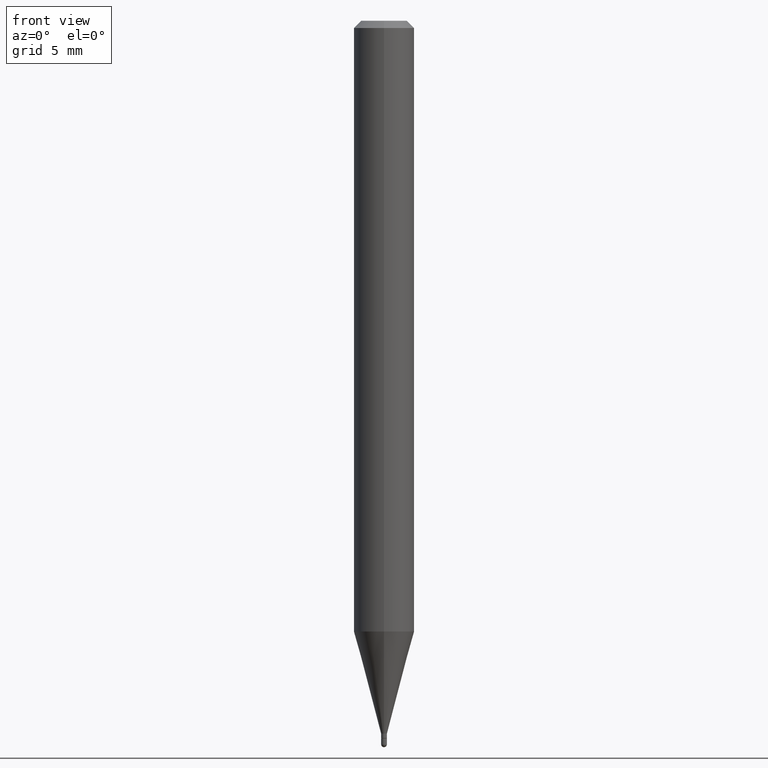
[diagram: clean part render]
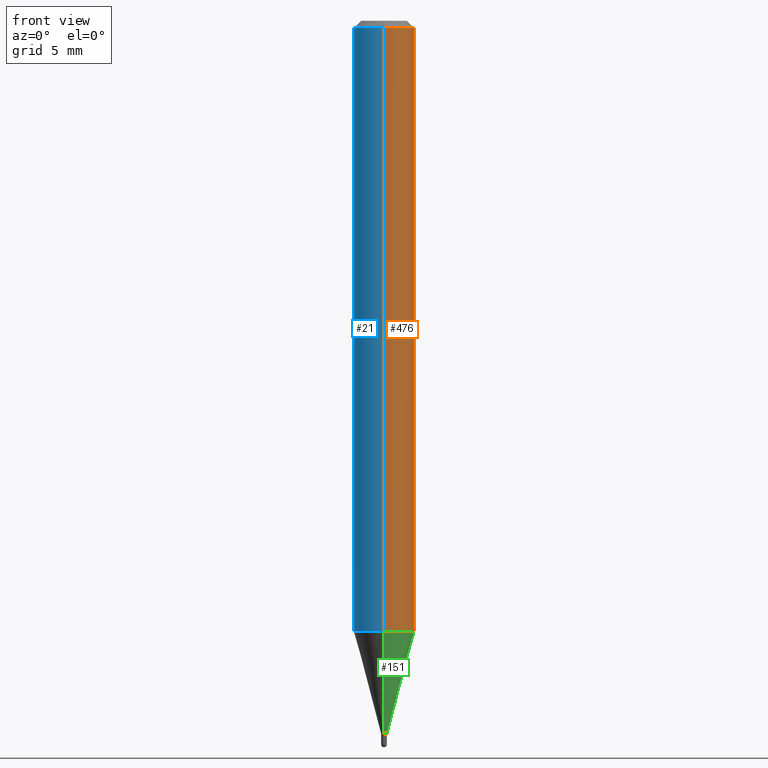
[diagram: same view with three faces highlighted in distinct colors, each labeled with its STEP entity id]
A machine part, front view with three faces highlighted in distinct colors.
Their STEP definitions:

[orange] entity #476 — the highlighted cylindrical surface (edge-blend (fillet) strip) has radius 1.5875 mm, axis along (-0, 0, 1).
#31 = DIRECTION ( 'NONE',  ( -2.445483068383558096E-29, 3.491460914563251865E-15, 1.000000000000000000 ) ) ;
#66 = CARTESIAN_POINT ( 'NONE',  ( -4.364351673553912750E-16, -0.06250000000000005551, -0.01499999999999979128 ) ) ;
#94 = AXIS2_PLACEMENT_3D ( 'NONE', #421, #186, #461 ) ;
#96 = CARTESIAN_POINT ( 'NONE',  ( 3.084094387756085363E-29, -4.403217978029919440E-15, -1.261139129372358836 ) ) ;
#105 = VERTEX_POINT ( 'NONE', #486 ) ;
#109 = CARTESIAN_POINT ( 'NONE',  ( 4.440892098500935790E-16, 0.06249999999999995143, -0.01500000000000022669 ) ) ;
#110 = ORIENTED_EDGE ( 'NONE', *, *, #156, .F. ) ;
#115 = CARTESIAN_POINT ( 'NONE',  ( 4.440892098500625669E-16, 0.06250000000000000000, -2.182163071602032416E-16 ) ) ;
#120 = CIRCLE ( 'NONE', #94, 0.06250000000000000000 ) ;
#123 = AXIS2_PLACEMENT_3D ( 'NONE', #96, #127, #280 ) ;
#127 = DIRECTION ( 'NONE',  ( -2.445483068383558096E-29, 3.491460914563251865E-15, 1.000000000000000000 ) ) ;
#146 = VERTEX_POINT ( 'NONE', #66 ) ;
#153 = CIRCLE ( 'NONE', #123, 0.06250000000000000000 ) ;
#156 = EDGE_CURVE ( 'NONE', #146, #263, #120, .T. ) ;
#171 = DIRECTION ( 'NONE',  ( -6.982962677686265922E-15, -1.000000000000000000, 3.491460914563251865E-15 ) ) ;
#186 = DIRECTION ( 'NONE',  ( -2.445483068383558096E-29, 3.491460914563251865E-15, 1.000000000000000000 ) ) ;
#197 = ORIENTED_EDGE ( 'NONE', *, *, #382, .T. ) ;
#204 = CYLINDRICAL_SURFACE ( 'NONE', #304, 0.06250000000000000000 ) ;
#224 = CARTESIAN_POINT ( 'NONE',  ( -4.364351673553916201E-16, -0.06250000000000000000, 2.182163071602032416E-16 ) ) ;
#232 = VECTOR ( 'NONE', #261, 39.37007874015748143 ) ;
#248 = ORIENTED_EDGE ( 'NONE', *, *, #507, .T. ) ;
#261 = DIRECTION ( 'NONE',  ( -2.445483068383558096E-29, 3.491460914563251865E-15, 1.000000000000000000 ) ) ;
#263 = VERTEX_POINT ( 'NONE', #109 ) ;
#270 = EDGE_CURVE ( 'NONE', #429, #146, #501, .T. ) ;
#280 = DIRECTION ( 'NONE',  ( -6.982962677686265922E-15, -1.000000000000000000, 4.370956789862821150E-15 ) ) ;
#281 = VECTOR ( 'NONE', #31, 39.37007874015748143 ) ;
#283 = FACE_OUTER_BOUND ( 'NONE', #383, .T. ) ;
#304 = AXIS2_PLACEMENT_3D ( 'NONE', #444, #313, #171 ) ;
#313 = DIRECTION ( 'NONE',  ( -2.445483068383558096E-29, 3.491460914563251865E-15, 1.000000000000000000 ) ) ;
#341 = LINE ( 'NONE', #115, #232 ) ;
#382 = EDGE_CURVE ( 'NONE', #105, #263, #341, .T. ) ;
#383 = EDGE_LOOP ( 'NONE', ( #248, #197, #110, #468 ) ) ;
#411 = CARTESIAN_POINT ( 'NONE',  ( -4.364351673553608052E-16, -0.06250000000000439926, -1.261139129372358614 ) ) ;
#421 = CARTESIAN_POINT ( 'NONE',  ( 3.668224602575339527E-31, -5.237191371844881323E-17, -0.01500000000000000812 ) ) ;
#429 = VERTEX_POINT ( 'NONE', #411 ) ;
#444 = CARTESIAN_POINT ( 'NONE',  ( 0.000000000000000000, 0.000000000000000000, 0.000000000000000000 ) ) ;
#461 = DIRECTION ( 'NONE',  ( -6.982962677686265922E-15, -1.000000000000000000, 3.483106191921935554E-15 ) ) ;
#468 = ORIENTED_EDGE ( 'NONE', *, *, #270, .F. ) ;
#476 = ADVANCED_FACE ( 'NONE', ( #283 ), #204, .T. ) ;
#486 = CARTESIAN_POINT ( 'NONE',  ( 4.440892098500932831E-16, 0.06249999999999558686, -1.261139129372359058 ) ) ;
#501 = LINE ( 'NONE', #224, #281 ) ;
#507 = EDGE_CURVE ( 'NONE', #429, #105, #153, .T. ) ;

[blue] entity #21 — the highlighted cylindrical surface (edge-blend (fillet) strip) has radius 1.5875 mm, axis along (-0, 0, 1).
#3 = ORIENTED_EDGE ( 'NONE', *, *, #464, .T. ) ;
#21 = ADVANCED_FACE ( 'NONE', ( #460 ), #458, .T. ) ;
#31 = DIRECTION ( 'NONE',  ( -2.445483068383558096E-29, 3.491460914563251865E-15, 1.000000000000000000 ) ) ;
#55 = DIRECTION ( 'NONE',  ( -6.982962677686265922E-15, -1.000000000000000000, 3.491460914563251865E-15 ) ) ;
#57 = AXIS2_PLACEMENT_3D ( 'NONE', #177, #148, #55 ) ;
#66 = CARTESIAN_POINT ( 'NONE',  ( -4.364351673553912750E-16, -0.06250000000000005551, -0.01499999999999979128 ) ) ;
#75 = EDGE_CURVE ( 'NONE', #263, #146, #192, .T. ) ;
#81 = EDGE_LOOP ( 'NONE', ( #198, #3, #499, #330 ) ) ;
#95 = AXIS2_PLACEMENT_3D ( 'NONE', #170, #325, #390 ) ;
#105 = VERTEX_POINT ( 'NONE', #486 ) ;
#109 = CARTESIAN_POINT ( 'NONE',  ( 4.440892098500935790E-16, 0.06249999999999995143, -0.01500000000000022669 ) ) ;
#115 = CARTESIAN_POINT ( 'NONE',  ( 4.440892098500625669E-16, 0.06250000000000000000, -2.182163071602032416E-16 ) ) ;
#146 = VERTEX_POINT ( 'NONE', #66 ) ;
#148 = DIRECTION ( 'NONE',  ( -2.445483068383558096E-29, 3.491460914563251865E-15, 1.000000000000000000 ) ) ;
#170 = CARTESIAN_POINT ( 'NONE',  ( 3.084094387756085363E-29, -4.403217978029919440E-15, -1.261139129372358836 ) ) ;
#177 = CARTESIAN_POINT ( 'NONE',  ( 0.000000000000000000, 0.000000000000000000, 0.000000000000000000 ) ) ;
#184 = CIRCLE ( 'NONE', #95, 0.06250000000000000000 ) ;
#192 = CIRCLE ( 'NONE', #448, 0.06250000000000000000 ) ;
#198 = ORIENTED_EDGE ( 'NONE', *, *, #382, .F. ) ;
#213 = CARTESIAN_POINT ( 'NONE',  ( 3.668224602575339527E-31, -5.237191371844881323E-17, -0.01500000000000000812 ) ) ;
#220 = DIRECTION ( 'NONE',  ( -6.982962677686265922E-15, -1.000000000000000000, 3.483106191921935554E-15 ) ) ;
#224 = CARTESIAN_POINT ( 'NONE',  ( -4.364351673553916201E-16, -0.06250000000000000000, 2.182163071602032416E-16 ) ) ;
#232 = VECTOR ( 'NONE', #261, 39.37007874015748143 ) ;
#261 = DIRECTION ( 'NONE',  ( -2.445483068383558096E-29, 3.491460914563251865E-15, 1.000000000000000000 ) ) ;
#263 = VERTEX_POINT ( 'NONE', #109 ) ;
#270 = EDGE_CURVE ( 'NONE', #429, #146, #501, .T. ) ;
#281 = VECTOR ( 'NONE', #31, 39.37007874015748143 ) ;
#325 = DIRECTION ( 'NONE',  ( -2.445483068383558096E-29, 3.491460914563251865E-15, 1.000000000000000000 ) ) ;
#330 = ORIENTED_EDGE ( 'NONE', *, *, #75, .F. ) ;
#341 = LINE ( 'NONE', #115, #232 ) ;
#372 = DIRECTION ( 'NONE',  ( -2.445483068383558096E-29, 3.491460914563251865E-15, 1.000000000000000000 ) ) ;
#382 = EDGE_CURVE ( 'NONE', #105, #263, #341, .T. ) ;
#390 = DIRECTION ( 'NONE',  ( -6.982962677686265922E-15, -1.000000000000000000, 4.370956789862821150E-15 ) ) ;
#411 = CARTESIAN_POINT ( 'NONE',  ( -4.364351673553608052E-16, -0.06250000000000439926, -1.261139129372358614 ) ) ;
#429 = VERTEX_POINT ( 'NONE', #411 ) ;
#448 = AXIS2_PLACEMENT_3D ( 'NONE', #213, #372, #220 ) ;
#458 = CYLINDRICAL_SURFACE ( 'NONE', #57, 0.06250000000000000000 ) ;
#460 = FACE_OUTER_BOUND ( 'NONE', #81, .T. ) ;
#464 = EDGE_CURVE ( 'NONE', #105, #429, #184, .T. ) ;
#486 = CARTESIAN_POINT ( 'NONE',  ( 4.440892098500932831E-16, 0.06249999999999558686, -1.261139129372359058 ) ) ;
#499 = ORIENTED_EDGE ( 'NONE', *, *, #270, .T. ) ;
#501 = LINE ( 'NONE', #224, #281 ) ;

[green] entity #151 — the highlighted conical surface has half-angle 15 deg.
#10 = CARTESIAN_POINT ( 'NONE',  ( -4.189777606608105530E-17, -0.006000000000005062048, -1.471999999999999975 ) ) ;
#16 = EDGE_CURVE ( 'NONE', #353, #105, #60, .T. ) ;
#18 = CARTESIAN_POINT ( 'NONE',  ( 2.433608869978675634E-16, 0.005999999999994782944, -1.471999999999999975 ) ) ;
#20 = DIRECTION ( 'NONE',  ( -1.807323732225329745E-15, -0.2588190451025181305, 0.9659258262890689783 ) ) ;
#26 = DIRECTION ( 'NONE',  ( -2.445483068383558096E-29, 3.491460914563251865E-15, 1.000000000000000000 ) ) ;
#60 = LINE ( 'NONE', #336, #302 ) ;
#61 = DIRECTION ( 'NONE',  ( 1.839019923739599921E-15, 0.2588190451025249028, 0.9659258262890670910 ) ) ;
#96 = CARTESIAN_POINT ( 'NONE',  ( 3.084094387756085363E-29, -4.403217978029919440E-15, -1.261139129372358836 ) ) ;
#105 = VERTEX_POINT ( 'NONE', #486 ) ;
#116 = ORIENTED_EDGE ( 'NONE', *, *, #339, .T. ) ;
#123 = AXIS2_PLACEMENT_3D ( 'NONE', #96, #127, #280 ) ;
#127 = DIRECTION ( 'NONE',  ( -2.445483068383558096E-29, 3.491460914563251865E-15, 1.000000000000000000 ) ) ;
#129 = CIRCLE ( 'NONE', #164, 0.005999999999999922930 ) ;
#151 = ADVANCED_FACE ( 'NONE', ( #222 ), #431, .T. ) ;
#153 = CIRCLE ( 'NONE', #123, 0.06250000000000000000 ) ;
#164 = AXIS2_PLACEMENT_3D ( 'NONE', #485, #241, #211 ) ;
#211 = DIRECTION ( 'NONE',  ( -6.982962677686265922E-15, -1.000000000000000000, 0.000000000000000000 ) ) ;
#222 = FACE_OUTER_BOUND ( 'NONE', #320, .T. ) ;
#226 = VECTOR ( 'NONE', #20, 39.37007874015748143 ) ;
#241 = DIRECTION ( 'NONE',  ( -2.445483068383558096E-29, 3.491460914563251865E-15, 1.000000000000000000 ) ) ;
#260 = ORIENTED_EDGE ( 'NONE', *, *, #16, .T. ) ;
#271 = LINE ( 'NONE', #407, #226 ) ;
#280 = DIRECTION ( 'NONE',  ( -6.982962677686265922E-15, -1.000000000000000000, 4.370956789862821150E-15 ) ) ;
#302 = VECTOR ( 'NONE', #61, 39.37007874015748143 ) ;
#320 = EDGE_LOOP ( 'NONE', ( #116, #260, #419, #416 ) ) ;
#336 = CARTESIAN_POINT ( 'NONE',  ( 4.263256414564145531E-17, 0.005999999999994783811, -1.471999999999999975 ) ) ;
#337 = CARTESIAN_POINT ( 'NONE',  ( 3.599751076660597576E-29, -5.139430466237107339E-15, -1.471999999999999975 ) ) ;
#339 = EDGE_CURVE ( 'NONE', #463, #353, #129, .T. ) ;
#353 = VERTEX_POINT ( 'NONE', #18 ) ;
#389 = AXIS2_PLACEMENT_3D ( 'NONE', #337, #26, #497 ) ;
#407 = CARTESIAN_POINT ( 'NONE',  ( -4.189777606608105530E-17, -0.006000000000005062048, -1.471999999999999975 ) ) ;
#411 = CARTESIAN_POINT ( 'NONE',  ( -4.364351673553608052E-16, -0.06250000000000439926, -1.261139129372358614 ) ) ;
#415 = EDGE_CURVE ( 'NONE', #463, #429, #271, .T. ) ;
#416 = ORIENTED_EDGE ( 'NONE', *, *, #415, .F. ) ;
#419 = ORIENTED_EDGE ( 'NONE', *, *, #507, .F. ) ;
#429 = VERTEX_POINT ( 'NONE', #411 ) ;
#431 = CONICAL_SURFACE ( 'NONE', #389, 0.005999999999999922930, 0.2617993877991502405 ) ;
#463 = VERTEX_POINT ( 'NONE', #10 ) ;
#485 = CARTESIAN_POINT ( 'NONE',  ( 3.599751076660597576E-29, -5.139430466237107339E-15, -1.471999999999999975 ) ) ;
#486 = CARTESIAN_POINT ( 'NONE',  ( 4.440892098500932831E-16, 0.06249999999999558686, -1.261139129372359058 ) ) ;
#497 = DIRECTION ( 'NONE',  ( -6.982962677686265922E-15, -1.000000000000000000, 0.000000000000000000 ) ) ;
#507 = EDGE_CURVE ( 'NONE', #429, #105, #153, .T. ) ;